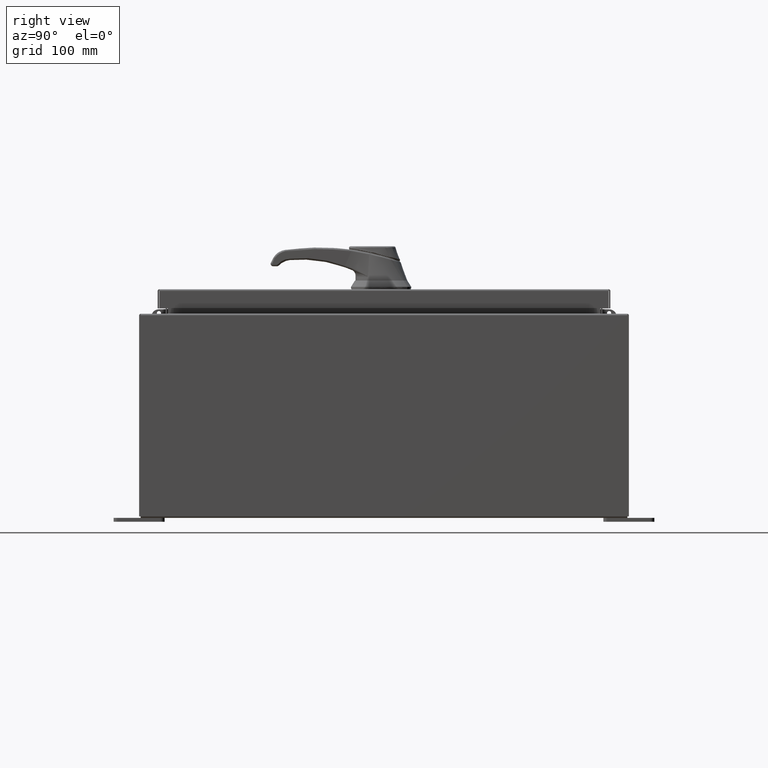
[diagram: clean part render]
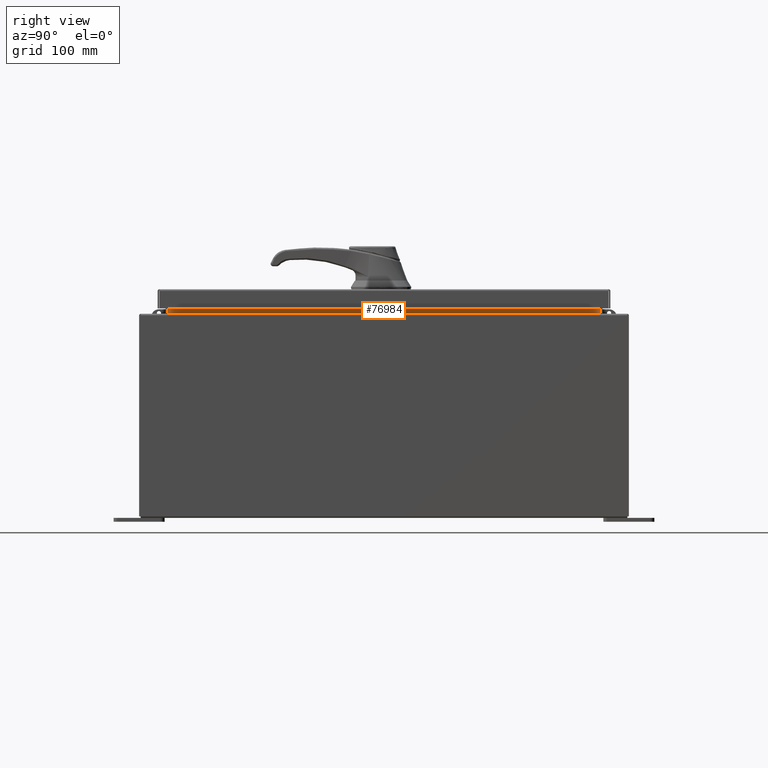
[diagram: same view with one face highlighted and labeled with its STEP entity id]
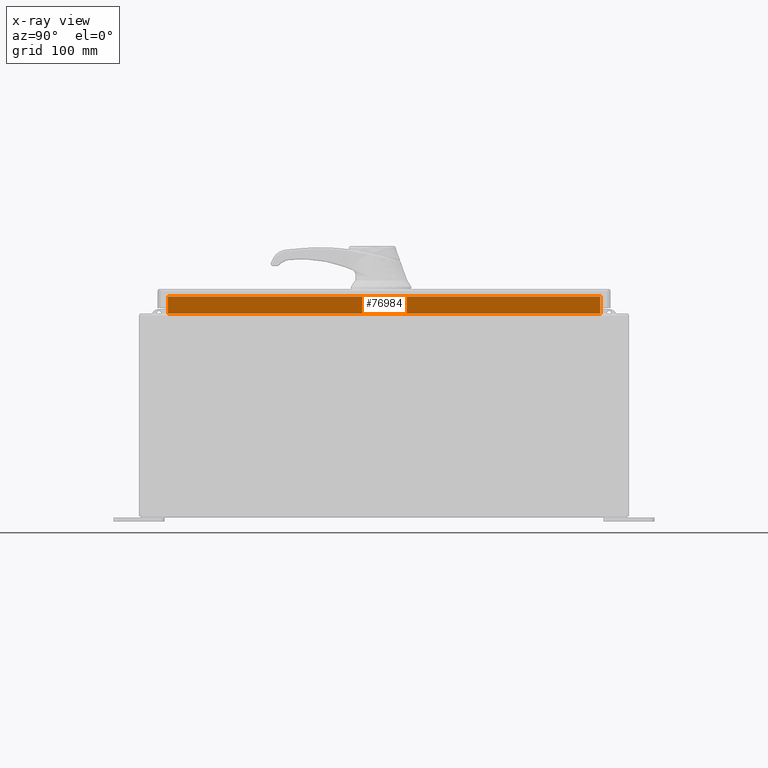
[diagram: x-ray of the same camera — body ghosted, the highlighted face saturated]
A machine part, right view. The second image highlights one B-rep face of the part: STEP entity #76984.
The next image is the same camera in x-ray: the body ghosted, the highlighted face saturated — about 0% of this face is hidden behind the body in this view.
In plain terms, the highlighted planar face has unit normal (1, 0, -0).
Its self-contained STEP definition (entity closure, byte-faithful):
#1142 = EDGE_CURVE ( 'NONE', #76076, #110764, #65794, .T. ) ;
#2057 = ORIENTED_EDGE ( 'NONE', *, *, #9100, .F. ) ;
#6696 = CARTESIAN_POINT ( 'NONE',  ( 8.699700000000035500, 10.59374999999999600, 10.76290000000001100 ) ) ;
#8154 = LINE ( 'NONE', #85534, #28487 ) ;
#9100 = EDGE_CURVE ( 'NONE', #74436, #14130, #74504, .T. ) ;
#9213 = CARTESIAN_POINT ( 'NONE',  ( 8.699700000000035500, 10.59374999999999600, 9.938300000000008800 ) ) ;
#11119 = DIRECTION ( 'NONE',  ( 2.361913319930198800E-015, -0.0000000000000000000, 1.000000000000000000 ) ) ;
#14130 = VERTEX_POINT ( 'NONE', #24695 ) ;
#22409 = VECTOR ( 'NONE', #31917, 39.37007874015748100 ) ;
#23862 = PLANE ( 'NONE',  #54931 ) ;
#24695 = CARTESIAN_POINT ( 'NONE',  ( 8.699700000000035500, -10.59374999999999800, 9.938300000000008800 ) ) ;
#28487 = VECTOR ( 'NONE', #111690, 39.37007874015748100 ) ;
#31155 = VECTOR ( 'NONE', #69830, 39.37007874015748100 ) ;
#31917 = DIRECTION ( 'NONE',  ( 0.0000000000000000000, 1.000000000000000000, 0.0000000000000000000 ) ) ;
#34555 = CARTESIAN_POINT ( 'NONE',  ( 8.699700000000035500, -10.59375000000000000, 10.76290000000001100 ) ) ;
#39587 = EDGE_CURVE ( 'NONE', #14130, #76076, #96632, .T. ) ;
#41285 = DIRECTION ( 'NONE',  ( -2.361913319930193300E-015, 0.0000000000000000000, -1.000000000000000000 ) ) ;
#47745 = VECTOR ( 'NONE', #11119, 39.37007874015748100 ) ;
#51170 = CARTESIAN_POINT ( 'NONE',  ( 8.699700000000035500, 10.59374999999999600, 9.938300000000008800 ) ) ;
#54931 = AXIS2_PLACEMENT_3D ( 'NONE', #84457, #109838, #41285 ) ;
#63033 = CARTESIAN_POINT ( 'NONE',  ( 8.699700000000037300, -10.59375000000000000, 10.85060000000001100 ) ) ;
#65794 = LINE ( 'NONE', #34555, #22409 ) ;
#66950 = FACE_OUTER_BOUND ( 'NONE', #99282, .T. ) ;
#69830 = DIRECTION ( 'NONE',  ( 1.031494227696241200E-016, -1.000000000000000000, 1.031494227696241200E-016 ) ) ;
#74436 = VERTEX_POINT ( 'NONE', #51170 ) ;
#74504 = LINE ( 'NONE', #9213, #31155 ) ;
#76076 = VERTEX_POINT ( 'NONE', #106608 ) ;
#76773 = ORIENTED_EDGE ( 'NONE', *, *, #82592, .F. ) ;
#76984 = ADVANCED_FACE ( 'NONE', ( #66950 ), #23862, .T. ) ;
#82050 = ORIENTED_EDGE ( 'NONE', *, *, #39587, .F. ) ;
#82592 = EDGE_CURVE ( 'NONE', #110764, #74436, #8154, .T. ) ;
#84457 = CARTESIAN_POINT ( 'NONE',  ( 8.699700000000012400, 0.0000000000000000000, -2.054793730939673200E-014 ) ) ;
#85534 = CARTESIAN_POINT ( 'NONE',  ( 8.699700000000035500, 10.59374999999999600, 9.925300000000008900 ) ) ;
#96632 = LINE ( 'NONE', #63033, #47745 ) ;
#99282 = EDGE_LOOP ( 'NONE', ( #76773, #110005, #82050, #2057 ) ) ;
#106608 = CARTESIAN_POINT ( 'NONE',  ( 8.699700000000037300, -10.59375000000000000, 10.76290000000001100 ) ) ;
#109838 = DIRECTION ( 'NONE',  ( 1.000000000000000000, 0.0000000000000000000, -2.361913319930193300E-015 ) ) ;
#110005 = ORIENTED_EDGE ( 'NONE', *, *, #1142, .F. ) ;
#110764 = VERTEX_POINT ( 'NONE', #6696 ) ;
#111690 = DIRECTION ( 'NONE',  ( -2.361913319930193300E-015, -0.0000000000000000000, -1.000000000000000000 ) ) ;